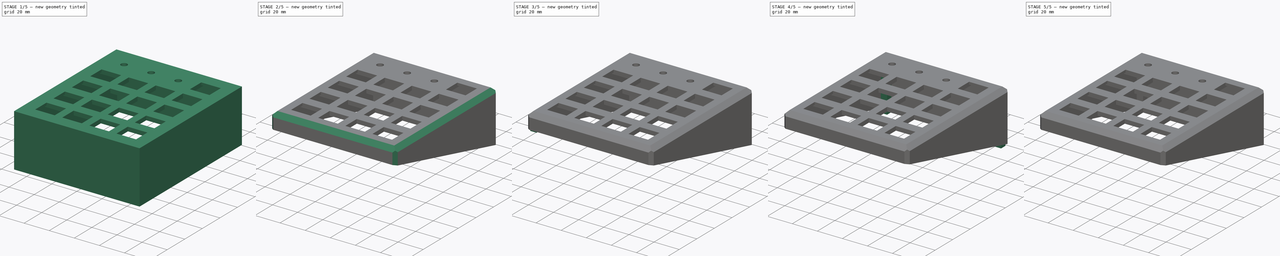
[diagram: build sequence overview — one tinted view per stage of 5, left to right]
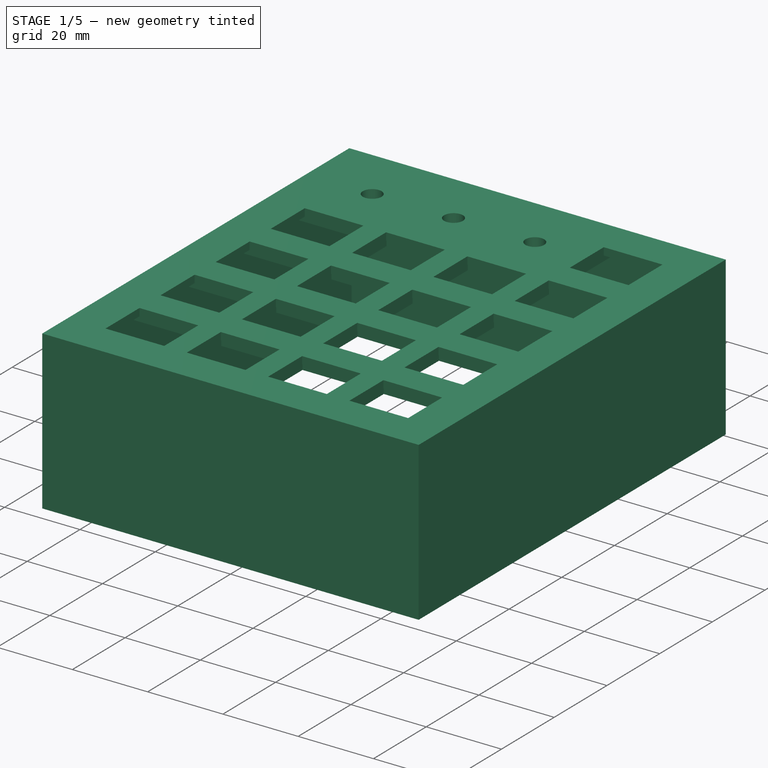
[diagram: stage 1 of 5 — iso view after this stage's code; geometry added in this stage tinted green]
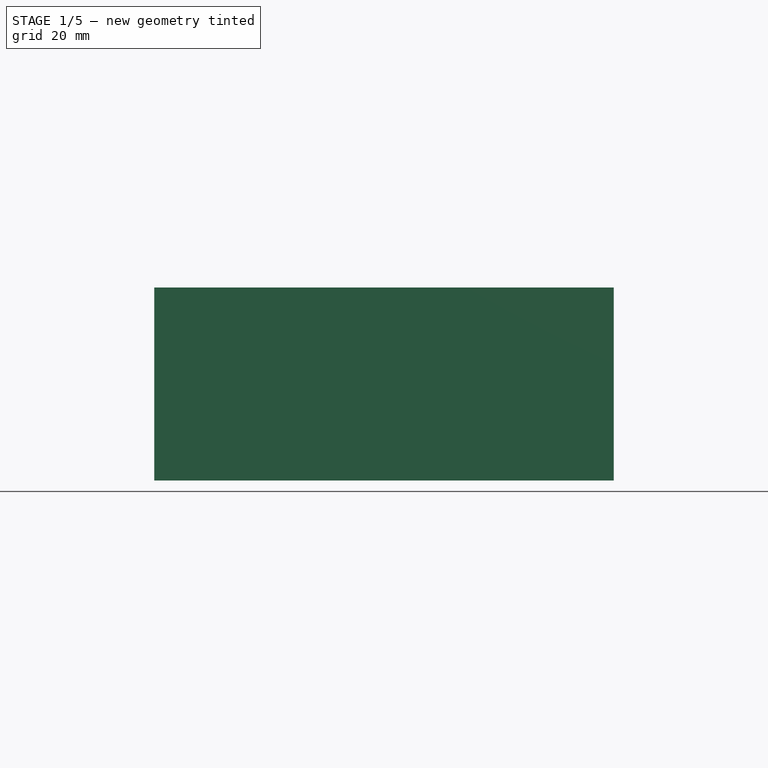
[diagram: stage 1 of 5 — front view after this stage's code; geometry added in this stage tinted green]
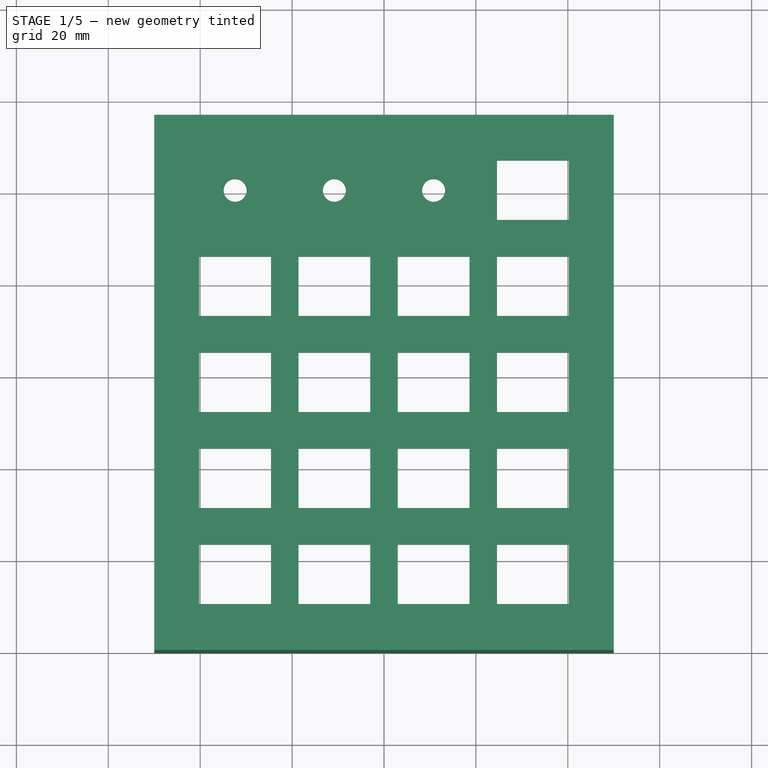
[diagram: stage 1 of 5 — top view after this stage's code; geometry added in this stage tinted green]
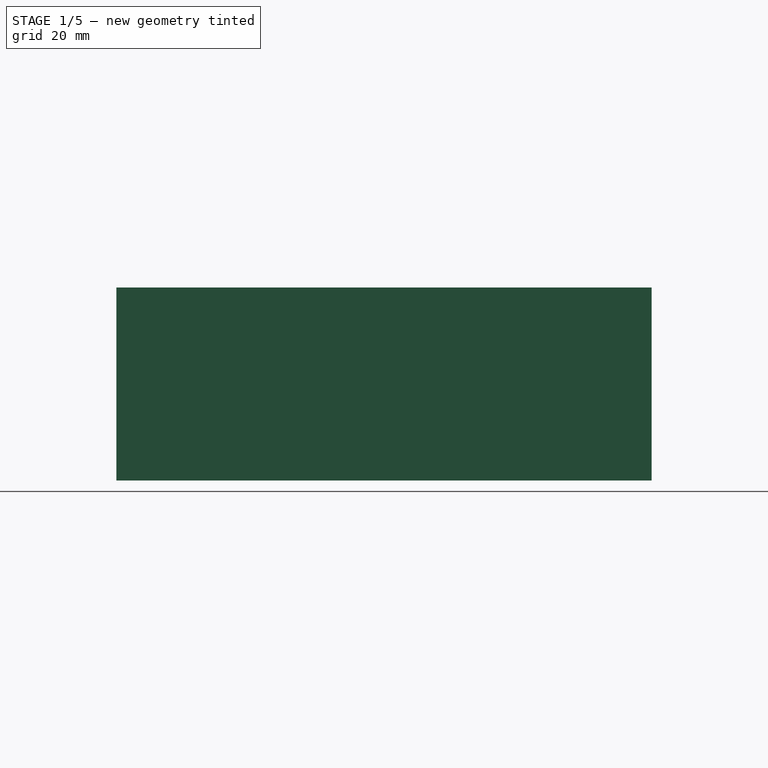
[diagram: stage 1 of 5 — right view after this stage's code; geometry added in this stage tinted green]
FCSTD DOCUMENT  (FreeCAD 0.17R13528 (Git))
Label: macro_keys-TOP
License: All rights reserved
LicenseURL: http://en.wikipedia.org/wiki/All_rights_reserved
objects: Sketcher::SketchObject×12, PartDesign::Pocket×7, PartDesign::Pad×5, PartDesign::Chamfer×3, App::MeasureDistance×2, PartDesign::Body×1
note: 40 computed .brp shape members not serialized (recipe doc carries the construction recipe); baked Part::Feature solids carry a one-line shape summary decoded from their .brp

FEATURE [Sketcher::SketchObject] Sketch
  MapMode = 5
  Support = -> [XY_Plane]
  sketch-geometry (75):
    g0: LineSegment StartX=-50 StartY=116.5 StartZ=0 EndX=50 EndY=116.5 EndZ=0
    g1: LineSegment StartX=50 StartY=116.5 StartZ=0 EndX=50 EndY=0 EndZ=0
    g2: LineSegment StartX=50 StartY=0 StartZ=0 EndX=-50 EndY=0 EndZ=0
    g3: LineSegment StartX=-50 StartY=0 StartZ=0 EndX=-50 EndY=116.5 EndZ=0
    g4: LineSegment StartX=-18.6 StartY=22.9 StartZ=0 EndX=-3 EndY=22.9 EndZ=0
    g5: LineSegment StartX=-3 StartY=22.9 StartZ=0 EndX=-3 EndY=10 EndZ=0
    g6: LineSegment StartX=-3 StartY=10 StartZ=0 EndX=-18.6 EndY=10 EndZ=0
    g7: LineSegment StartX=-18.6 StartY=10 StartZ=0 EndX=-18.6 EndY=22.9 EndZ=0
    g8: LineSegment StartX=3 StartY=10 StartZ=0 EndX=18.6 EndY=10 EndZ=0
    g9: LineSegment StartX=18.6 StartY=10 StartZ=0 EndX=18.6 EndY=22.9 EndZ=0
    g10: LineSegment StartX=18.6 StartY=22.9 StartZ=0 EndX=3 EndY=22.9 EndZ=0
    g11: LineSegment StartX=3 StartY=22.9 StartZ=0 EndX=3 EndY=10 EndZ=0
    g12: LineSegment StartX=-40.2 StartY=22.9 StartZ=0 EndX=-24.6 EndY=22.9 EndZ=0
    g13: LineSegment StartX=-24.6 StartY=22.9 StartZ=0 EndX=-24.6 EndY=10 EndZ=0
    g14: LineSegment StartX=-24.6 StartY=10 StartZ=0 EndX=-40.2 EndY=10 EndZ=0
    g15: LineSegment StartX=-40.2 StartY=10 StartZ=0 EndX=-40.2 EndY=22.9 EndZ=0
    g16: LineSegment StartX=24.6 StartY=22.9 StartZ=0 EndX=40.2 EndY=22.9 EndZ=0
    g17: LineSegment StartX=40.2 StartY=22.9 StartZ=0 EndX=40.2 EndY=10 EndZ=0
    g18: LineSegment StartX=40.2 StartY=10 StartZ=0 EndX=24.6 EndY=10 EndZ=0
    g19: LineSegment StartX=24.6 StartY=10 StartZ=0 EndX=24.6 EndY=22.9 EndZ=0
    g20: LineSegment StartX=-40.2 StartY=43.8 StartZ=0 EndX=-24.6 EndY=43.8 EndZ=0
    g21: LineSegment StartX=-24.6 StartY=43.8 StartZ=0 EndX=-24.6 EndY=30.9 EndZ=0
    g22: LineSegment StartX=-24.6 StartY=30.9 StartZ=0 EndX=-40.2 EndY=30.9 EndZ=0
    g23: LineSegment StartX=-40.2 StartY=30.9 StartZ=0 EndX=-40.2 EndY=43.8 EndZ=0
    g24: LineSegment StartX=-18.6 StartY=43.8 StartZ=0 EndX=-3 EndY=43.8 EndZ=0
    g25: LineSegment StartX=-3 StartY=43.8 StartZ=0 EndX=-3 EndY=30.9 EndZ=0
    g26: LineSegment StartX=-3 StartY=30.9 StartZ=0 EndX=-18.6 EndY=30.9 EndZ=0
    g27: LineSegment StartX=-18.6 StartY=30.9 StartZ=0 EndX=-18.6 EndY=43.8 EndZ=0
    g28: LineSegment StartX=3 StartY=43.8 StartZ=0 EndX=18.6 EndY=43.8 EndZ=0
    g29: LineSegment StartX=18.6 StartY=43.8 StartZ=0 EndX=18.6 EndY=30.9 EndZ=0
    g30: LineSegment StartX=18.6 StartY=30.9 StartZ=0 EndX=3 EndY=30.9 EndZ=0
    g31: LineSegment StartX=3 StartY=30.9 StartZ=0 EndX=3 EndY=43.8 EndZ=0
    g32: LineSegment StartX=24.6 StartY=43.8 StartZ=0 EndX=40.2 EndY=43.8 EndZ=0
    g33: LineSegment StartX=40.2 StartY=43.8 StartZ=0 EndX=40.2 EndY=30.9 EndZ=0
    g34: LineSegment StartX=40.2 StartY=30.9 StartZ=0 EndX=24.6 EndY=30.9 EndZ=0
    g35: LineSegment StartX=24.6 StartY=30.9 StartZ=0 EndX=24.6 EndY=43.8 EndZ=0
    g36: LineSegment StartX=-40.2 StartY=64.7 StartZ=0 EndX=-24.6 EndY=64.7 EndZ=0
    g37: LineSegment StartX=-24.6 StartY=64.7 StartZ=0 EndX=-24.6 EndY=51.8 EndZ=0
    g38: LineSegment StartX=-24.6 StartY=51.8 StartZ=0 EndX=-40.2 EndY=51.8 EndZ=0
    g39: LineSegment StartX=-40.2 StartY=51.8 StartZ=0 EndX=-40.2 EndY=64.7 EndZ=0
    g40: LineSegment StartX=-18.6 StartY=64.7 StartZ=0 EndX=-3 EndY=64.7 EndZ=0
    g41: LineSegment StartX=-3 StartY=64.7 StartZ=0 EndX=-3 EndY=51.8 EndZ=0
    g42: LineSegment StartX=-3 StartY=51.8 StartZ=0 EndX=-18.6 EndY=51.8 EndZ=0
    g43: LineSegment StartX=-18.6 StartY=51.8 StartZ=0 EndX=-18.6 EndY=64.7 EndZ=0
    g44: LineSegment StartX=3 StartY=64.7 StartZ=0 EndX=18.6 EndY=64.7 EndZ=0
    g45: LineSegment StartX=18.6 StartY=64.7 StartZ=0 EndX=18.6 EndY=51.8 EndZ=0
    g46: LineSegment StartX=18.6 StartY=51.8 StartZ=0 EndX=3 EndY=51.8 EndZ=0
    g47: LineSegment StartX=3 StartY=51.8 StartZ=0 EndX=3 EndY=64.7 EndZ=0
    g48: LineSegment StartX=24.6 StartY=64.7 StartZ=0 EndX=40.2 EndY=64.7 EndZ=0
    g49: LineSegment StartX=40.2 StartY=64.7 StartZ=0 EndX=40.2 EndY=51.8 EndZ=0
    g50: LineSegment StartX=40.2 StartY=51.8 StartZ=0 EndX=24.6 EndY=51.8 EndZ=0
    g51: LineSegment StartX=24.6 StartY=51.8 StartZ=0 EndX=24.6 EndY=64.7 EndZ=0
    g52: LineSegment StartX=-40.2 StartY=85.6 StartZ=0 EndX=-24.6 EndY=85.6 EndZ=0
    g53: LineSegment StartX=-24.6 StartY=85.6 StartZ=0 EndX=-24.6 EndY=72.7 EndZ=0
    g54: LineSegment StartX=-24.6 StartY=72.7 StartZ=0 EndX=-40.2 EndY=72.7 EndZ=0
    g55: LineSegment StartX=-40.2 StartY=72.7 StartZ=0 EndX=-40.2 EndY=85.6 EndZ=0
    g56: LineSegment StartX=-18.6 StartY=85.6 StartZ=0 EndX=-3 EndY=85.6 EndZ=0
    g57: LineSegment StartX=-3 StartY=85.6 StartZ=0 EndX=-3 EndY=72.7 EndZ=0
    g58: LineSegment StartX=-3 StartY=72.7 StartZ=0 EndX=-18.6 EndY=72.7 EndZ=0
    g59: LineSegment StartX=-18.6 StartY=72.7 StartZ=0 EndX=-18.6 EndY=85.6 EndZ=0
    g60: LineSegment StartX=3 StartY=85.6 StartZ=0 EndX=18.6 EndY=85.6 EndZ=0
    g61: LineSegment StartX=18.6 StartY=85.6 StartZ=0 EndX=18.6 EndY=72.7 EndZ=0
    g62: LineSegment StartX=18.6 StartY=72.7 StartZ=0 EndX=3 EndY=72.7 EndZ=0
    g63: LineSegment StartX=3 StartY=72.7 StartZ=0 EndX=3 EndY=85.6 EndZ=0
    g64: LineSegment StartX=24.6 StartY=85.6 StartZ=0 EndX=40.2 EndY=85.6 EndZ=0
    g65: LineSegment StartX=40.2 StartY=85.6 StartZ=0 EndX=40.2 EndY=72.7 EndZ=0
    g66: LineSegment StartX=40.2 StartY=72.7 StartZ=0 EndX=24.6 EndY=72.7 EndZ=0
    g67: LineSegment StartX=24.6 StartY=72.7 StartZ=0 EndX=24.6 EndY=85.6 EndZ=0
    g68: LineSegment StartX=24.6 StartY=106.5 StartZ=0 EndX=40.2 EndY=106.5 EndZ=0
    g69: LineSegment StartX=40.2 StartY=106.5 StartZ=0 EndX=40.2 EndY=93.6 EndZ=0
    g70: LineSegment StartX=40.2 StartY=93.6 StartZ=0 EndX=24.6 EndY=93.6 EndZ=0
    g71: LineSegment StartX=24.6 StartY=93.6 StartZ=0 EndX=24.6 EndY=106.5 EndZ=0
    g72: Circle CenterX=10.8 CenterY=100.05 CenterZ=0 NormalX=0 NormalY=0 NormalZ=1 AngleXU=0 Radius=2.5
    g73: Circle CenterX=-10.8 CenterY=100.05 CenterZ=0 NormalX=0 NormalY=0 NormalZ=1 AngleXU=0 Radius=2.5
    g74: Circle CenterX=-32.4 CenterY=100.05 CenterZ=0 NormalX=0 NormalY=0 NormalZ=1 AngleXU=0 Radius=2.5
  constraints (224):
    c: Coincident(g0,g1)
    c: Coincident(g1,g2)
    c: Coincident(g2,g3)
    c: Coincident(g3,g0)
    c: Horizontal(g0)
    c: Horizontal(g2)
    c: Vertical(g1)
    c: Vertical(g3)
    c: DistanceX(g0,g0) = 100
    c: Symmetric(g2,g2,g-1)
    c: Coincident(g4,g5)
    c: Coincident(g5,g6)
    c: Coincident(g6,g7)
    c: Coincident(g7,g4)
    c: Horizontal(g4)
    c: Horizontal(g6)
    c: Vertical(g5)
    c: Vertical(g7)
    c: Coincident(g8,g9)
    c: Coincident(g9,g10)
    c: Coincident(g10,g11)
    c: Coincident(g11,g8)
    c: Horizontal(g8)
    c: Horizontal(g10)
    c: Vertical(g9)
    c: Vertical(g11)
    c: DistanceY(g-1,g8) = 10
    c: DistanceY(g-1,g5) = 10
    c: DistanceX(g4,g-1) = 3
    c: DistanceX(g-1,g8) = 3
    c: Coincident(g12,g13)
    c: Coincident(g13,g14)
    c: Coincident(g14,g15)
    c: Coincident(g15,g12)
    c: Horizontal(g12)
    c: Horizontal(g14)
    c: Vertical(g13)
    c: Vertical(g15)
    c: Coincident(g16,g17)
    c: Coincident(g17,g18)
    c: Coincident(g18,g19)
    c: Coincident(g19,g16)
    c: Horizontal(g16)
    c: Horizontal(g18)
    c: Vertical(g17)
    c: Vertical(g19)
    c: DistanceX(g12,g12) = 15.6
    c: DistanceX(g12,g4) = 6
    c: DistanceX(g9,g16) = 6
    c: DistanceY(g13,g13) = 12.9
    c: DistanceY(g-1,g13) = 10
    c: DistanceY(g-1,g18) = 10
    c: Coincident(g20,g21)
    c: Coincident(g21,g22)
    c: Coincident(g22,g23)
    c: Coincident(g23,g20)
    c: Horizontal(g20)
    c: Horizontal(g22)
    c: Vertical(g21)
    c: Vertical(g23)
    c: Coincident(g24,g25)
    c: Coincident(g25,g26)
    c: Coincident(g26,g27)
    c: Coincident(g27,g24)
    c: Horizontal(g24)
    c: Horizontal(g26)
    c: Vertical(g25)
    c: Vertical(g27)
    c: Coincident(g28,g29)
    c: Coincident(g29,g30)
    c: Coincident(g30,g31)
    c: Coincident(g31,g28)
    c: Horizontal(g28)
    c: Horizontal(g30)
    c: Vertical(g29)
    c: Vertical(g31)
    c: Coincident(g32,g33)
    c: Coincident(g33,g34)
    c: Coincident(g34,g35)
    c: Coincident(g35,g32)
    c: Horizontal(g32)
    c: Horizontal(g34)
    c: Vertical(g33)
    c: Vertical(g35)
    c: Coincident(g36,g37)
    c: Coincident(g37,g38)
    c: Coincident(g38,g39)
    c: Coincident(g39,g36)
    c: Horizontal(g36)
    c: Horizontal(g38)
    c: Vertical(g37)
    c: Vertical(g39)
    c: Coincident(g40,g41)
    c: Coincident(g41,g42)
    c: Coincident(g42,g43)
    c: Coincident(g43,g40)
    c: Horizontal(g40)
    c: Horizontal(g42)
    c: Vertical(g41)
    c: Vertical(g43)
    c: Coincident(g44,g45)
    c: Coincident(g45,g46)
    c: Coincident(g46,g47)
    c: Coincident(g47,g44)
    c: Horizontal(g44)
    c: Horizontal(g46)
    c: Vertical(g45)
    c: Vertical(g47)
    c: Coincident(g48,g49)
    c: Coincident(g49,g50)
    c: Coincident(g50,g51)
    c: Coincident(g51,g48)
    c: Horizontal(g48)
    c: Horizontal(g50)
    c: Vertical(g49)
    c: Vertical(g51)
    c: Coincident(g52,g53)
    c: Coincident(g53,g54)
    c: Coincident(g54,g55)
    c: Coincident(g55,g52)
    c: Horizontal(g52)
    c: Horizontal(g54)
    c: Vertical(g53)
    c: Vertical(g55)
    c: Coincident(g56,g57)
    c: Coincident(g57,g58)
    c: Coincident(g58,g59)
    c: Coincident(g59,g56)
    c: Horizontal(g56)
    c: Horizontal(g58)
    c: Vertical(g57)
    c: Vertical(g59)
    c: Coincident(g60,g61)
    c: Coincident(g61,g62)
    c: Coincident(g62,g63)
    c: Coincident(g63,g60)
    c: Horizontal(g60)
    c: Horizontal(g62)
    c: Vertical(g61)
    c: Vertical(g63)
    c: Coincident(g64,g65)
    c: Coincident(g65,g66)
    c: Coincident(g66,g67)
    c: Coincident(g67,g64)
    c: Horizontal(g64)
    c: Horizontal(g66)
    c: Vertical(g65)
    c: Vertical(g67)
    c: Coincident(g68,g69)
    c: Coincident(g69,g70)
    c: Coincident(g70,g71)
    c: Coincident(g71,g68)
    c: Horizontal(g68)
    c: Horizontal(g70)
    c: Vertical(g69)
    c: Vertical(g71)
    c: Equal(g12,g4)
    c: Equal(g4,g10)
    c: Equal(g10,g16)
    c: Equal(g16,g32)
    c: Equal(g32,g28)
    c: Equal(g28,g24)
    c: Equal(g24,g20)
    c: Equal(g20,g36)
    c: Equal(g36,g40)
    c: Equal(g40,g44)
    c: Equal(g44,g48)
    c: Equal(g48,g64)
    c: Equal(g64,g60)
    c: Equal(g60,g56)
    c: Equal(g56,g52)
    c: Equal(g52,g68)
    c: Equal(g13,g5)
    c: Equal(g5,g9)
    c: Equal(g9,g17)
    c: Equal(g17,g33)
    c: Equal(g33,g29)
    c: Equal(g29,g25)
    c: Equal(g25,g21)
    c: Equal(g21,g37)
    c: Equal(g37,g41)
    c: Equal(g41,g45)
    c: Equal(g45,g49)
    c: Equal(g49,g65)
    c: Equal(g65,g61)
    c: Equal(g61,g57)
    c: Equal(g57,g53)
    c: Equal(g53,g69)
    c: DistanceX(g25,g-1) = 3
    c: DistanceX(g-1,g30) = 3
    c: DistanceX(g41,g-1) = 3
    c: DistanceX(g-1,g46) = 3
    c: DistanceX(g57,g-1) = 3
    c: DistanceX(g-1,g62) = 3
    c: DistanceX(g21,g26) = 6
    c: DistanceX(g29,g34) = 6
    c: DistanceX(g37,g42) = 6
    c: DistanceX(g45,g50) = 6
    c: DistanceX(g61,g66) = 6
    c: DistanceX(g53,g58) = 6
    c: DistanceY(g12,g21) = 8
    c: DistanceY(g4,g25) = 8
    c: DistanceY(g10,g30) = 8
    c: DistanceY(g16,g34) = 8
    c: DistanceY(g32,g49) = 8
    c: DistanceY(g28,g45) = 8
    c: DistanceY(g24,g41) = 8
    c: DistanceY(g20,g37) = 8
    c: DistanceY(g36,g53) = 8
    c: DistanceY(g40,g57) = 8
    c: DistanceY(g44,g61) = 8
    c: DistanceY(g48,g65) = 8
    c: DistanceY(g64,g69) = 8
    c: DistanceX(g70,g64) = 0
    c: Radius(g72) = 2.5
    c: Radius(g73) = 2.5
    c: Radius(g74) = 2.5
    c: DistanceX(g52,g74) = 7.8
    c: DistanceX(g56,g73) = 7.8
    c: DistanceX(g60,g72) = 7.8
    c: DistanceY(g72,g68) = 6.45
    c: DistanceY(g72,g73) = 0
    c: DistanceY(g74,g73) = 0
    c: DistanceY(g68,g0) = 10
FEATURE [PartDesign::Pad] Pad
  Length = 2
  Length2 = 100
  Profile = -> Sketch
  Type = 0
FEATURE [Sketcher::SketchObject] Sketch001
  ExternalGeometry = -> [Pad]
  MapMode = 5
  Placement = pos=(0,0,0) rot=(1,0,0;3.14159rad)
  Support = -> [Pad]
  sketch-geometry (8):
    g0: LineSegment StartX=-50 StartY=0 StartZ=0 EndX=50 EndY=0 EndZ=0
    g1: LineSegment StartX=50 StartY=0 StartZ=0 EndX=50 EndY=-116.5 EndZ=0
    g2: LineSegment StartX=50 StartY=-116.5 StartZ=0 EndX=-50 EndY=-116.5 EndZ=0
    g3: LineSegment StartX=-50 StartY=-116.5 StartZ=0 EndX=-50 EndY=0 EndZ=0
    g4: LineSegment StartX=-48 StartY=-2 StartZ=0 EndX=48 EndY=-2 EndZ=0
    g5: LineSegment StartX=48 StartY=-2 StartZ=0 EndX=48 EndY=-114.5 EndZ=0
    g6: LineSegment StartX=48 StartY=-114.5 StartZ=0 EndX=-48 EndY=-114.5 EndZ=0
    g7: LineSegment StartX=-48 StartY=-114.5 StartZ=0 EndX=-48 EndY=-2 EndZ=0
  constraints (21):
    c: Coincident(g0,g-6)
    c: Coincident(g0,g-4)
    c: Coincident(g1,g0)
    c: Vertical(g1)
    c: Coincident(g2,g1)
    c: Coincident(g2,g-6)
    c: Horizontal(g2)
    c: Coincident(g3,g2)
    c: Coincident(g3,g0)
    c: Coincident(g4,g5)
    c: Coincident(g5,g6)
    c: Coincident(g6,g7)
    c: Coincident(g7,g4)
    c: Horizontal(g4)
    c: Horizontal(g6)
    c: Vertical(g5)
    c: Vertical(g7)
    c: DistanceY(g4,g0) = 2
    c: DistanceY(g1,g5) = 2
    c: DistanceX(g0,g4) = 2
    c: DistanceX(g4,g0) = 2
FEATURE [PartDesign::Pad] Pad001
  BaseFeature = -> Pad
  Length = 40
  Length2 = 100
  Profile = -> Sketch001
  Type = 0
FEATURE [Sketcher::SketchObject] Sketch002
  ExternalGeometry = -> [Pad001]
  MapMode = 5
  Placement = pos=(0,0,0) rot=(1,0,0;3.14159rad)
  Support = -> [Pad001]
  sketch-geometry (82):
    g0: Circle CenterX=-32.4 CenterY=-100.05 CenterZ=0 NormalX=0 NormalY=0 NormalZ=1 AngleXU=0 Radius=5
    g1: Circle CenterX=-32.4 CenterY=-100.05 CenterZ=0 NormalX=0 NormalY=0 NormalZ=1 AngleXU=0 Radius=2.5
    g2: Circle CenterX=-10.8 CenterY=-100.05 CenterZ=0 NormalX=0 NormalY=0 NormalZ=1 AngleXU=0 Radius=5
    g3: Circle CenterX=-10.8 CenterY=-100.05 CenterZ=0 NormalX=0 NormalY=0 NormalZ=1 AngleXU=0 Radius=2.5
    g4: Circle CenterX=10.8 CenterY=-100.05 CenterZ=0 NormalX=0 NormalY=0 NormalZ=1 AngleXU=0 Radius=5
    g5: Circle CenterX=10.8 CenterY=-100.05 CenterZ=0 NormalX=0 NormalY=0 NormalZ=1 AngleXU=0 Radius=2.5
    g6: LineSegment StartX=22.6 StartY=-114.5 StartZ=0 EndX=20.6 EndY=-114.5 EndZ=0
    g7: LineSegment StartX=20.6 StartY=-114.5 StartZ=0 EndX=20.6 EndY=-90.6 EndZ=0
    g8: LineSegment StartX=20.6 StartY=-2 StartZ=0 EndX=22.6 EndY=-2 EndZ=0
    g9: LineSegment StartX=22.6 StartY=-2 StartZ=0 EndX=22.6 EndY=-25.9 EndZ=0
    g10: LineSegment StartX=1 StartY=-114.5 StartZ=0 EndX=-1 EndY=-114.5 EndZ=0
    g11: LineSegment StartX=-1 StartY=-114.5 StartZ=0 EndX=-1 EndY=-90.6 EndZ=0
    g12: LineSegment StartX=-1 StartY=-2 StartZ=0 EndX=1 EndY=-2 EndZ=0
    g13: LineSegment StartX=1 StartY=-2 StartZ=0 EndX=1 EndY=-25.9 EndZ=0
    g14: LineSegment StartX=-20.6 StartY=-114.5 StartZ=0 EndX=-22.6 EndY=-114.5 EndZ=0
    g15: LineSegment StartX=-22.6 StartY=-114.5 StartZ=0 EndX=-22.6 EndY=-90.6 EndZ=0
    g16: LineSegment StartX=-22.6 StartY=-2 StartZ=0 EndX=-20.6 EndY=-2 EndZ=0
    g17: LineSegment StartX=-20.6 StartY=-2 StartZ=0 EndX=-20.6 EndY=-25.9 EndZ=0
    g18: LineSegment StartX=-48 StartY=-90.6 StartZ=0 EndX=-22.6 EndY=-90.6 EndZ=0
    g19: LineSegment StartX=48 StartY=-90.6 StartZ=0 EndX=48 EndY=-88.6 EndZ=0
    g20: LineSegment StartX=48 StartY=-88.6 StartZ=0 EndX=22.6 EndY=-88.6 EndZ=0
    g21: LineSegment StartX=-48 StartY=-88.6 StartZ=0 EndX=-48 EndY=-90.6 EndZ=0
    g22: LineSegment StartX=-48 StartY=-69.7 StartZ=0 EndX=-22.6 EndY=-69.7 EndZ=0
    g23: LineSegment StartX=48 StartY=-69.7 StartZ=0 EndX=48 EndY=-67.7 EndZ=0
    g24: LineSegment StartX=48 StartY=-67.7 StartZ=0 EndX=22.6 EndY=-67.7 EndZ=0
    g25: LineSegment StartX=-48 StartY=-67.7 StartZ=0 EndX=-48 EndY=-69.7 EndZ=0
    g26: LineSegment StartX=-48 StartY=-48.8 StartZ=0 EndX=-22.6 EndY=-48.8 EndZ=0
    g27: LineSegment StartX=48 StartY=-48.8 StartZ=0 EndX=48 EndY=-46.8 EndZ=0
    g28: LineSegment StartX=48 StartY=-46.8 StartZ=0 EndX=22.6 EndY=-46.8 EndZ=0
    g29: LineSegment StartX=-48 StartY=-46.8 StartZ=0 EndX=-48 EndY=-48.8 EndZ=0
    g30: LineSegment StartX=-48 StartY=-27.9 StartZ=0 EndX=-22.6 EndY=-27.9 EndZ=0
    g31: LineSegment StartX=48 StartY=-27.9 StartZ=0 EndX=48 EndY=-25.9 EndZ=0
    g32: LineSegment StartX=48 StartY=-25.9 StartZ=0 EndX=22.6 EndY=-25.9 EndZ=0
    g33: LineSegment StartX=-48 StartY=-25.9 StartZ=0 EndX=-48 EndY=-27.9 EndZ=0
    g34: LineSegment StartX=22.6 StartY=-90.6 StartZ=0 EndX=48 EndY=-90.6 EndZ=0
    g35: LineSegment StartX=20.6 StartY=-88.6 StartZ=0 EndX=1 EndY=-88.6 EndZ=0
    g36: LineSegment StartX=22.6 StartY=-90.6 StartZ=0 EndX=22.6 EndY=-114.5 EndZ=0
    g37: LineSegment StartX=20.6 StartY=-88.6 StartZ=0 EndX=20.6 EndY=-69.7 EndZ=0
    g38: LineSegment StartX=1 StartY=-90.6 StartZ=0 EndX=20.6 EndY=-90.6 EndZ=0
    g39: LineSegment StartX=1 StartY=-90.6 StartZ=0 EndX=1 EndY=-114.5 EndZ=0
    g40: LineSegment StartX=-1 StartY=-88.6 StartZ=0 EndX=-20.6 EndY=-88.6 EndZ=0
    g41: LineSegment StartX=-1 StartY=-88.6 StartZ=0 EndX=-1 EndY=-69.7 EndZ=0
    g42: LineSegment StartX=-20.6 StartY=-90.6 StartZ=0 EndX=-1 EndY=-90.6 EndZ=0
    g43: LineSegment StartX=-20.6 StartY=-90.6 StartZ=0 EndX=-20.6 EndY=-114.5 EndZ=0
    g44: LineSegment StartX=-22.6 StartY=-88.6 StartZ=0 EndX=-48 EndY=-88.6 EndZ=0
    g45: LineSegment StartX=-22.6 StartY=-88.6 StartZ=0 EndX=-22.6 EndY=-69.7 EndZ=0
    g46: LineSegment StartX=22.6 StartY=-69.7 StartZ=0 EndX=48 EndY=-69.7 EndZ=0
    g47: LineSegment StartX=22.6 StartY=-69.7 StartZ=0 EndX=22.6 EndY=-88.6 EndZ=0
    g48: LineSegment StartX=20.6 StartY=-67.7 StartZ=0 EndX=1 EndY=-67.7 EndZ=0
    g49: LineSegment StartX=20.6 StartY=-67.7 StartZ=0 EndX=20.6 EndY=-48.8 EndZ=0
    g50: LineSegment StartX=1 StartY=-69.7 StartZ=0 EndX=20.6 EndY=-69.7 EndZ=0
    g51: LineSegment StartX=1 StartY=-69.7 StartZ=0 EndX=1 EndY=-88.6 EndZ=0
    g52: LineSegment StartX=-1 StartY=-67.7 StartZ=0 EndX=-20.6 EndY=-67.7 EndZ=0
    g53: LineSegment StartX=-1 StartY=-67.7 StartZ=0 EndX=-1 EndY=-48.8 EndZ=0
    g54: LineSegment StartX=-20.6 StartY=-69.7 StartZ=0 EndX=-1 EndY=-69.7 EndZ=0
    g55: LineSegment StartX=-20.6 StartY=-69.7 StartZ=0 EndX=-20.6 EndY=-88.6 EndZ=0
    g56: LineSegment StartX=-22.6 StartY=-67.7 StartZ=0 EndX=-48 EndY=-67.7 EndZ=0
    g57: LineSegment StartX=-22.6 StartY=-67.7 StartZ=0 EndX=-22.6 EndY=-48.8 EndZ=0
    g58: LineSegment StartX=22.6 StartY=-48.8 StartZ=0 EndX=48 EndY=-48.8 EndZ=0
    g59: LineSegment StartX=22.6 StartY=-48.8 StartZ=0 EndX=22.6 EndY=-67.7 EndZ=0
    g60: LineSegment StartX=20.6 StartY=-46.8 StartZ=0 EndX=1 EndY=-46.8 EndZ=0
    g61: LineSegment StartX=20.6 StartY=-46.8 StartZ=0 EndX=20.6 EndY=-27.9 EndZ=0
    g62: LineSegment StartX=1 StartY=-48.8 StartZ=0 EndX=1 EndY=-67.7 EndZ=0
    g63: LineSegment StartX=1 StartY=-48.8 StartZ=0 EndX=20.6 EndY=-48.8 EndZ=0
    g64: LineSegment StartX=-1 StartY=-46.8 StartZ=0 EndX=-20.6 EndY=-46.8 EndZ=0
    g65: LineSegment StartX=-1 StartY=-46.8 StartZ=0 EndX=-1 EndY=-27.9 EndZ=0
    g66: LineSegment StartX=-20.6 StartY=-48.8 StartZ=0 EndX=-1 EndY=-48.8 EndZ=0
    g67: LineSegment StartX=-20.6 StartY=-48.8 StartZ=0 EndX=-20.6 EndY=-67.7 EndZ=0
    g68: LineSegment StartX=-22.6 StartY=-46.8 StartZ=0 EndX=-48 EndY=-46.8 EndZ=0
    g69: LineSegment StartX=-22.6 StartY=-46.8 StartZ=0 EndX=-22.6 EndY=-27.9 EndZ=0
    g70: LineSegment StartX=22.6 StartY=-27.9 StartZ=0 EndX=22.6 EndY=-46.8 EndZ=0
    g71: LineSegment StartX=22.6 StartY=-27.9 StartZ=0 EndX=48 EndY=-27.9 EndZ=0
    g72: LineSegment StartX=20.6 StartY=-25.9 StartZ=0 EndX=20.6 EndY=-2 EndZ=0
    g73: LineSegment StartX=20.6 StartY=-25.9 StartZ=0 EndX=1 EndY=-25.9 EndZ=0
    g74: LineSegment StartX=1 StartY=-27.9 StartZ=0 EndX=1 EndY=-46.8 EndZ=0
    g75: LineSegment StartX=1 StartY=-27.9 StartZ=0 EndX=20.6 EndY=-27.9 EndZ=0
    g76: LineSegment StartX=-1 StartY=-25.9 StartZ=0 EndX=-20.6 EndY=-25.9 EndZ=0
    g77: LineSegment StartX=-20.6 StartY=-27.9 StartZ=0 EndX=-1 EndY=-27.9 EndZ=0
    g78: LineSegment StartX=-1 StartY=-25.9 StartZ=0 EndX=-1 EndY=-2 EndZ=0
    g79: LineSegment StartX=-20.6 StartY=-27.9 StartZ=0 EndX=-20.6 EndY=-46.8 EndZ=0
    g80: LineSegment StartX=-22.6 StartY=-25.9 StartZ=0 EndX=-48 EndY=-25.9 EndZ=0
    g81: LineSegment StartX=-22.6 StartY=-25.9 StartZ=0 EndX=-22.6 EndY=-2 EndZ=0
  constraints (192):
    c: Coincident(g0,g-17)
    c: Coincident(g1,g0)
    c: Coincident(g2,g-18)
    c: Coincident(g3,g2)
    c: Coincident(g4,g-19)
    c: Coincident(g5,g4)
    c: Radius(g1) = 2.5
    c: Radius(g0) = 5
    c: Radius(g3) = 2.5
    c: Radius(g2) = 5
    c: Radius(g5) = 2.5
    c: Radius(g4) = 5
    c: Coincident(g6,g7)
    c: Coincident(g72,g8)
    c: Coincident(g8,g9)
    c: Coincident(g36,g6)
    c: Horizontal(g6)
    c: Horizontal(g8)
    c: Vertical(g7)
    c: Vertical(g9)
    c: Coincident(g10,g11)
    c: Coincident(g78,g12)
    c: Coincident(g12,g13)
    c: Coincident(g39,g10)
    c: Horizontal(g10)
    c: Horizontal(g12)
    c: Vertical(g11)
    c: Vertical(g13)
    c: Coincident(g14,g15)
    c: Coincident(g81,g16)
    c: Coincident(g16,g17)
    c: Coincident(g43,g14)
    c: Horizontal(g14)
    c: Horizontal(g16)
    c: Vertical(g15)
    c: Vertical(g17)
    c: PointOnObject(g6,g-14)
    c: PointOnObject(g10,g-14)
    c: PointOnObject(g14,g-14)
    c: PointOnObject(g81,g-13)
    c: PointOnObject(g78,g-13)
    c: PointOnObject(g72,g-13)
    c: DistanceX(g81,g16) = 2
    c: DistanceX(g78,g12) = 2
    c: DistanceX(g72,g8) = 2
    c: DistanceX(g-5,g78) = 2
    c: DistanceX(g-3,g81) = 2
    c: DistanceX(g-7,g72) = 2
    c: Coincident(g34,g19)
    c: Coincident(g19,g20)
    c: Coincident(g44,g21)
    c: Coincident(g21,g18)
    c: Horizontal(g18)
    c: Horizontal(g20)
    c: Vertical(g19)
    c: Vertical(g21)
    c: Coincident(g46,g23)
    c: Coincident(g23,g24)
    c: Coincident(g56,g25)
    c: Coincident(g25,g22)
    c: Horizontal(g22)
    c: Horizontal(g24)
    c: Vertical(g23)
    c: Vertical(g25)
    c: Coincident(g58,g27)
    c: Coincident(g27,g28)
    c: Coincident(g68,g29)
    c: Coincident(g29,g26)
    c: Horizontal(g26)
    c: Horizontal(g28)
    c: Vertical(g27)
    c: Vertical(g29)
    c: Coincident(g71,g31)
    c: Coincident(g31,g32)
    c: Coincident(g80,g33)
    c: Coincident(g33,g30)
    c: Horizontal(g30)
    c: Horizontal(g32)
    c: Vertical(g31)
    c: Vertical(g33)
    c: PointOnObject(g18,g-15)
    c: PointOnObject(g22,g-15)
    c: PointOnObject(g26,g-15)
    c: PointOnObject(g30,g-15)
    c: PointOnObject(g31,g-16)
    c: PointOnObject(g27,g-16)
    c: PointOnObject(g23,g-16)
    c: PointOnObject(g19,g-16)
    c: DistanceY(g71,g31) = 2
    c: DistanceY(g58,g27) = 2
    c: DistanceY(g46,g23) = 2
    c: DistanceY(g34,g19) = 2
    c: Tangent(g18,g34)
    c: Tangent(g20,g35)
    c: Coincident(g47,g20)
    c: Coincident(g36,g34)
    c: Tangent(g9,g36)
    c: Coincident(g7,g38)
    c: Coincident(g37,g35)
    c: Tangent(g7,g37)
    c: Tangent(g18,g38)
    c: Coincident(g39,g38)
    c: Tangent(g13,g39)
    c: Coincident(g35,g51)
    c: Tangent(g35,g40)
    c: Coincident(g11,g42)
    c: Coincident(g41,g40)
    c: Tangent(g11,g41)
    c: Tangent(g18,g42)
    c: Coincident(g43,g42)
    c: Tangent(g17,g43)
    c: Coincident(g40,g55)
    c: Tangent(g40,g44)
    c: Coincident(g15,g18)
    c: Coincident(g45,g44)
    c: Tangent(g15,g45)
    c: Tangent(g22,g46)
    c: Coincident(g47,g46)
    c: Tangent(g9,g47)
    c: Coincident(g24,g59)
    c: Tangent(g24,g48)
    c: Coincident(g37,g50)
    c: Coincident(g49,g48)
    c: Tangent(g37,g49)
    c: Tangent(g22,g50)
    c: Coincident(g51,g50)
    c: Tangent(g13,g51)
    c: Coincident(g48,g62)
    c: Tangent(g48,g52)
    c: Coincident(g41,g54)
    c: Coincident(g53,g52)
    c: Tangent(g41,g53)
    c: Tangent(g22,g54)
    c: Coincident(g55,g54)
    c: Tangent(g17,g55)
    c: Coincident(g52,g67)
    c: Tangent(g52,g56)
    c: Coincident(g45,g22)
    c: Coincident(g57,g56)
    c: Tangent(g45,g57)
    c: Tangent(g26,g58)
    c: Coincident(g59,g58)
    c: Tangent(g9,g59)
    c: Coincident(g28,g70)
    c: Tangent(g28,g60)
    c: Coincident(g49,g63)
    c: Coincident(g61,g60)
    c: Tangent(g49,g61)
    c: Tangent(g13,g62)
    c: Coincident(g63,g62)
    c: Tangent(g26,g63)
    c: Coincident(g60,g74)
    c: Tangent(g60,g64)
    c: Coincident(g53,g66)
    c: Coincident(g65,g64)
    c: Tangent(g53,g65)
    c: Tangent(g26,g66)
    c: Coincident(g67,g66)
    c: Tangent(g17,g67)
    c: Coincident(g64,g79)
    c: Tangent(g64,g68)
    c: Coincident(g57,g26)
    c: Coincident(g69,g68)
    c: Tangent(g57,g69)
    c: Tangent(g9,g70)
    c: Coincident(g71,g70)
    c: Tangent(g30,g71)
    c: Coincident(g61,g75)
    c: Tangent(g61,g72)
    c: Coincident(g32,g9)
    c: Coincident(g73,g72)
    c: Tangent(g32,g73)
    c: Tangent(g13,g74)
    c: Coincident(g75,g74)
    c: Tangent(g30,g75)
    c: Coincident(g73,g13)
    c: Tangent(g73,g76)
    c: Tangent(g30,g77)
    c: Coincident(g65,g77)
    c: Coincident(g78,g76)
    c: Tangent(g65,g78)
    c: Coincident(g79,g77)
    c: Tangent(g17,g79)
    c: Coincident(g76,g17)
    c: Tangent(g76,g80)
    c: Coincident(g69,g30)
    c: Coincident(g81,g80)
    c: Tangent(g69,g81)
    c: DistanceY(g40,g-12) = 3
    c: DistanceY(g52,g-11) = 3
    c: DistanceY(g64,g-10) = 3
    c: DistanceY(g76,g-9) = 3
FEATURE [PartDesign::Pad] Pad002
  BaseFeature = -> Pad001
  Length = 3
  Length2 = 100
  Profile = -> Sketch002
  Type = 0
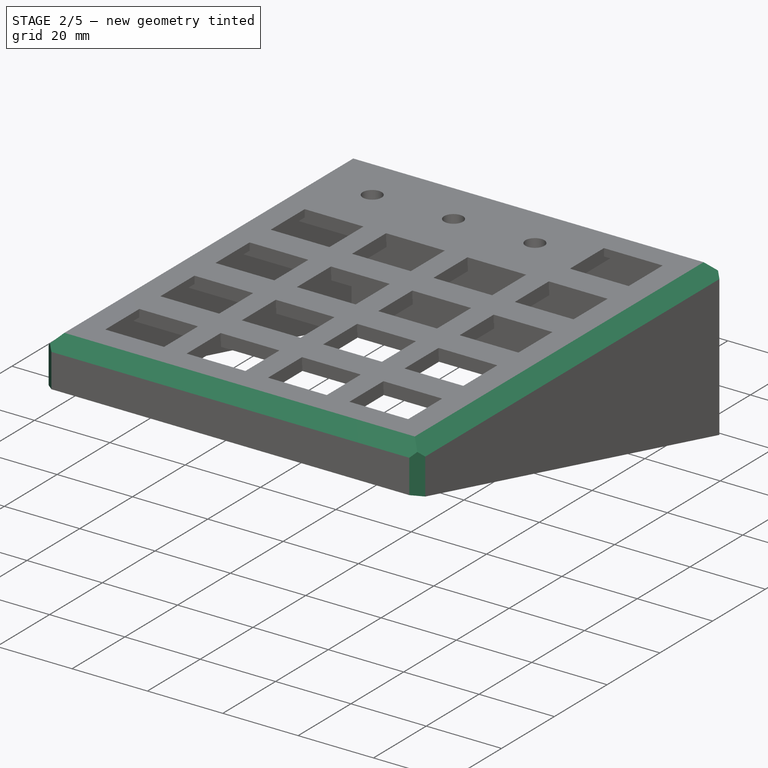
[diagram: stage 2 of 5 — iso view after this stage's code; geometry added in this stage tinted green]
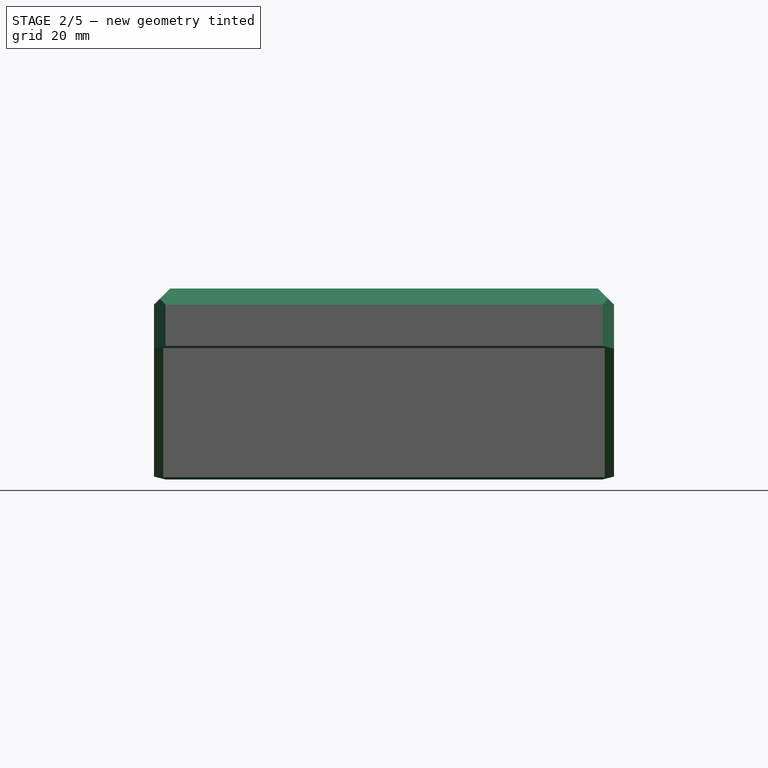
[diagram: stage 2 of 5 — front view after this stage's code; geometry added in this stage tinted green]
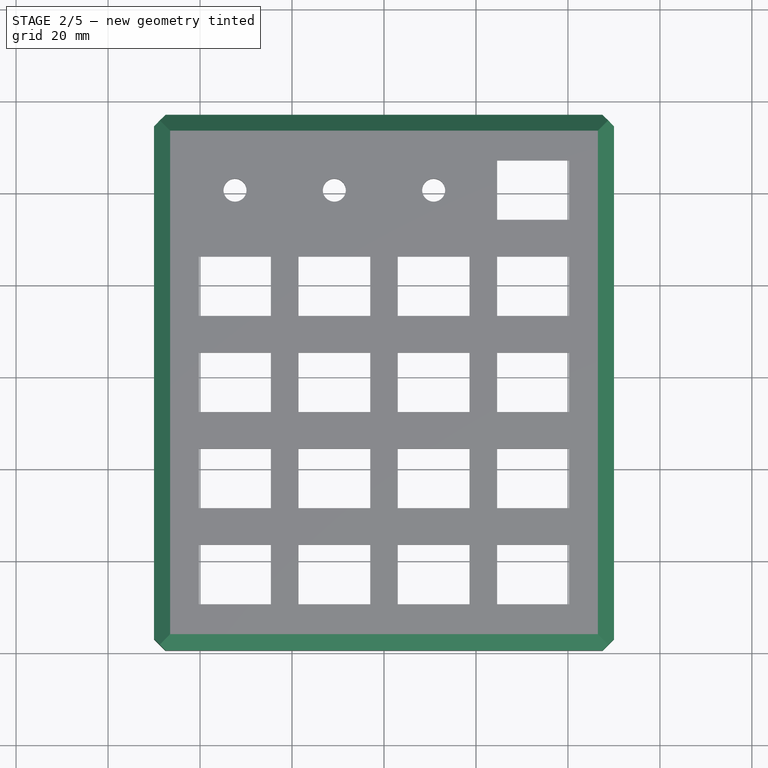
[diagram: stage 2 of 5 — top view after this stage's code; geometry added in this stage tinted green]
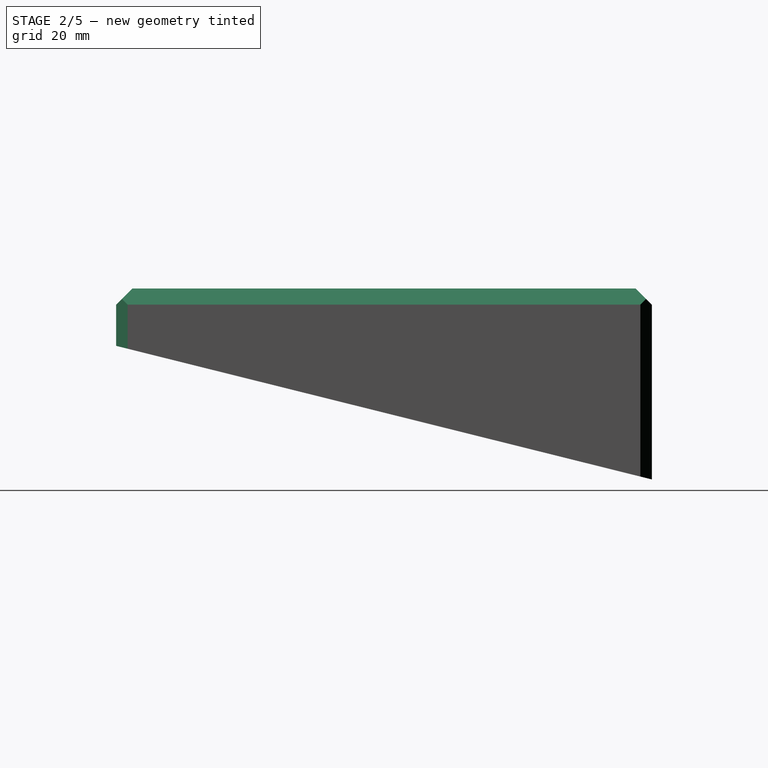
[diagram: stage 2 of 5 — right view after this stage's code; geometry added in this stage tinted green]
FEATURE [Sketcher::SketchObject] Sketch003
  ExternalGeometry = -> [Pad002]
  MapMode = 5
  Placement = pos=(50,0,0) rot=(0.57735,0.57735,0.57735;2.0944rad)
  Support = -> [Pad002]
  sketch-geometry (3):
    g0: LineSegment StartX=-1 StartY=-10.2107 StartZ=0 EndX=126.5 EndY=-42 EndZ=0
    g1: LineSegment StartX=-1 StartY=-10.2107 StartZ=0 EndX=-1 EndY=-42 EndZ=0
    g2: LineSegment StartX=-1 StartY=-42 StartZ=0 EndX=126.5 EndY=-42 EndZ=0
  constraints (9):
    c: Coincident(g1,g0)
    c: Vertical(g1)
    c: Coincident(g2,g1)
    c: DistanceX(g0,g-1) = 1
    c: Horizontal(g2)
    c: DistanceX(g-4,g0) = 10
    c: DistanceY(g0,g-4) = 2
    c: Coincident(g2,g0)
    c: Angle(g0,g2) = 0.244346
FEATURE [PartDesign::Pocket] Pocket
  BaseFeature = -> Pad002
  Length = 5
  Length2 = 100
  Profile = -> Sketch003
  Type = 1
FEATURE [PartDesign::Chamfer] Chamfer
  Base = -> Pocket [Edge4,Edge3,Edge2,Edge1]
  BaseFeature = -> Pocket
  Size = 3.5
FEATURE [PartDesign::Chamfer] Chamfer001
  Base = -> Chamfer [Edge229,Edge226,Edge228,Edge232]
  BaseFeature = -> Chamfer
  Size = 2.5
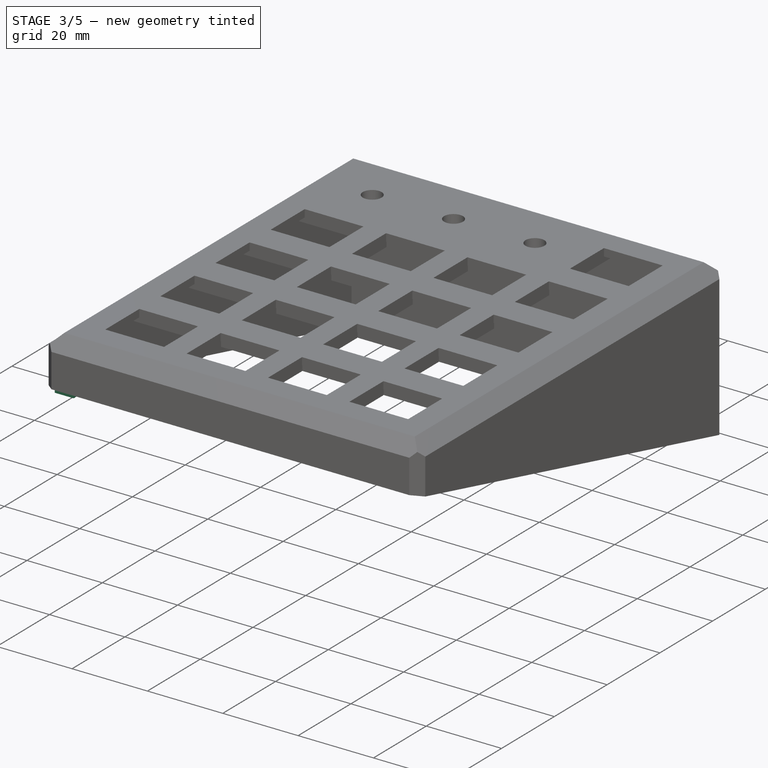
[diagram: stage 3 of 5 — iso view after this stage's code; geometry added in this stage tinted green]
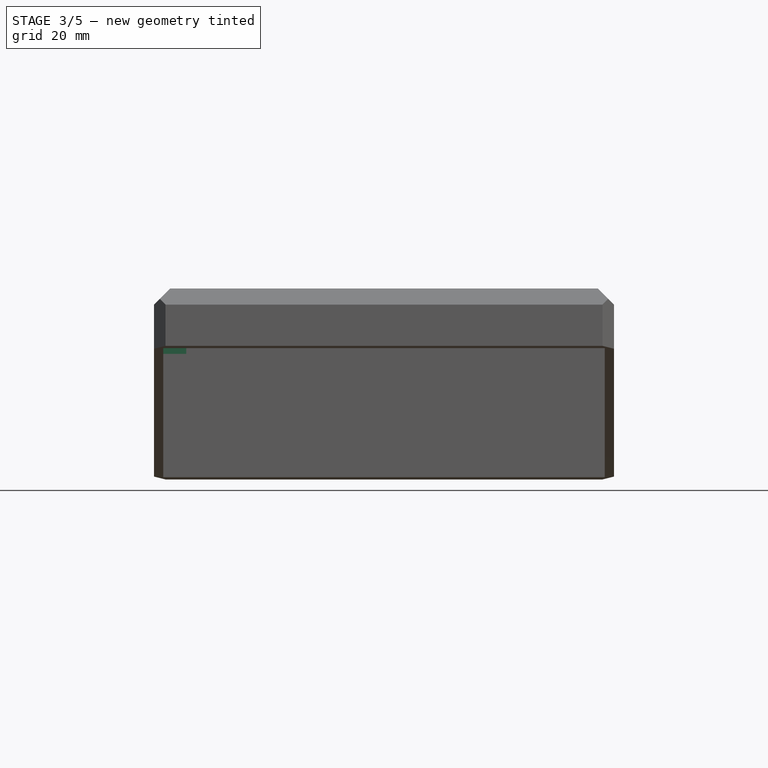
[diagram: stage 3 of 5 — front view after this stage's code; geometry added in this stage tinted green]
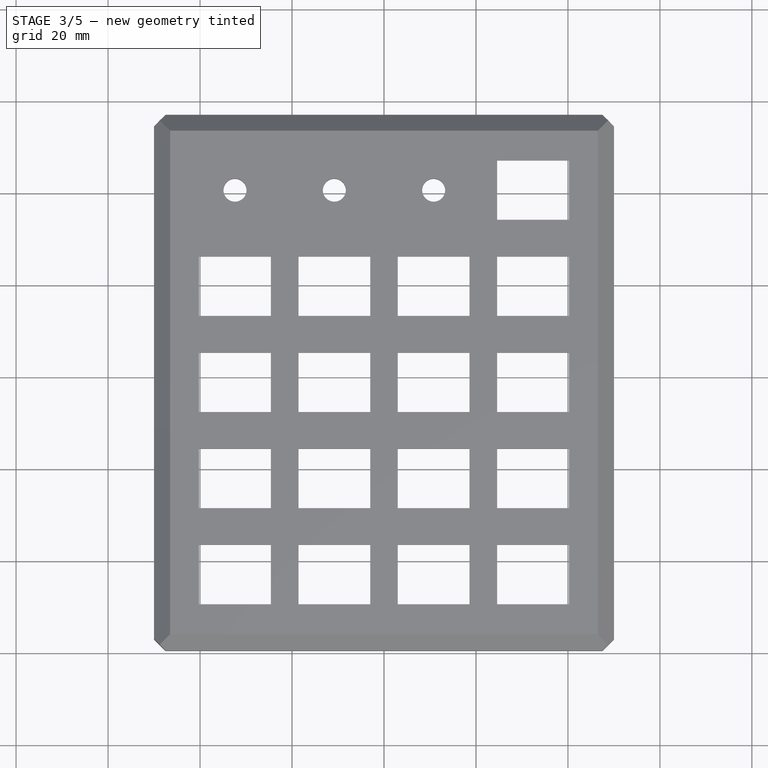
[diagram: stage 3 of 5 — top view after this stage's code; geometry added in this stage tinted green]
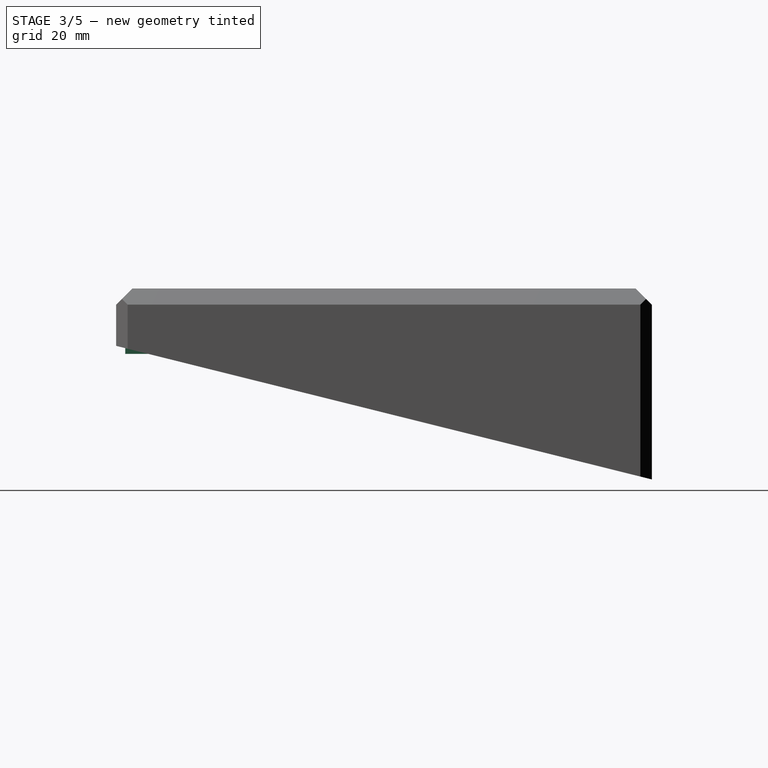
[diagram: stage 3 of 5 — right view after this stage's code; geometry added in this stage tinted green]
FEATURE [Sketcher::SketchObject] Sketch004
  ExternalGeometry = -> [Chamfer001]
  MapMode = 5
  Placement = pos=(0,0,0) rot=(1,0,0;3.14159rad)
  Support = -> [Chamfer001]
  sketch-geometry (8):
    g0: LineSegment StartX=48 StartY=-2 StartZ=0 EndX=43 EndY=-2 EndZ=0
    g1: LineSegment StartX=43 StartY=-2 StartZ=0 EndX=43 EndY=-7 EndZ=0
    g2: LineSegment StartX=43 StartY=-7 StartZ=0 EndX=48 EndY=-7 EndZ=0
    g3: LineSegment StartX=48 StartY=-7 StartZ=0 EndX=48 EndY=-2 EndZ=0
    g4: LineSegment StartX=-48 StartY=-2 StartZ=0 EndX=-43 EndY=-2 EndZ=0
    g5: LineSegment StartX=-43 StartY=-2 StartZ=0 EndX=-43 EndY=-7 EndZ=0
    g6: LineSegment StartX=-43 StartY=-7 StartZ=0 EndX=-48 EndY=-7 EndZ=0
    g7: LineSegment StartX=-48 StartY=-7 StartZ=0 EndX=-48 EndY=-2 EndZ=0
  constraints (22):
    c: Coincident(g0,g1)
    c: Coincident(g1,g2)
    c: Coincident(g2,g3)
    c: Coincident(g3,g0)
    c: Horizontal(g0)
    c: Horizontal(g2)
    c: Vertical(g1)
    c: Vertical(g3)
    c: Coincident(g0,g-4)
    c: DistanceX(g2,g2) = 5
    c: DistanceY(g1,g1) = 5
    c: Coincident(g4,g5)
    c: Coincident(g5,g6)
    c: Coincident(g6,g7)
    c: Coincident(g7,g4)
    c: Horizontal(g4)
    c: Horizontal(g6)
    c: Vertical(g5)
    c: Vertical(g7)
    c: Coincident(g-7,g4)
    c: DistanceX(g6,g6) = 5
    c: DistanceY(g5,g5) = 5
FEATURE [PartDesign::Pad] Pad003
  BaseFeature = -> Chamfer001
  Length = 12.2
  Length2 = 100
  Profile = -> Sketch004
  Type = 0
FEATURE [Sketcher::SketchObject] Sketch005
  ExternalGeometry = -> [Pad003]
  MapMode = 5
  Placement = pos=(43,0,0) rot=(0.57735,-0.57735,-0.57735;2.0944rad)
  Support = -> [Pad003]
  sketch-geometry (4):
    g0: LineSegment StartX=-7 StartY=-10.2 StartZ=0 EndX=-2 EndY=-8.95866 EndZ=0
    g1: LineSegment StartX=-2 StartY=-8.95866 StartZ=0 EndX=-2 EndY=-13.7911 EndZ=0
    g2: LineSegment StartX=-2 StartY=-13.7911 StartZ=0 EndX=-7 EndY=-13.7911 EndZ=0
    g3: LineSegment StartX=-7 StartY=-13.7911 StartZ=0 EndX=-7 EndY=-10.2 EndZ=0
  constraints (11):
    c: DistanceY(g-6,g0) = 2
    c: DistanceY(g-4,g0) = 2
    c: DistanceX(g-4,g0) = 0
    c: DistanceX(g0,g-6) = 0
    c: Coincident(g1,g0)
    c: Vertical(g1)
    c: Coincident(g2,g1)
    c: Horizontal(g2)
    c: Coincident(g3,g2)
    c: Coincident(g3,g0)
    c: Vertical(g3)
FEATURE [Sketcher::SketchObject] Sketch006
  ExternalGeometry = -> [Pad003]
  MapMode = 5
  Placement = pos=(0,0,-12.2) rot=(1,0,0;3.14159rad)
  Support = -> [Pad003]
  sketch-geometry (2):
    g0: Circle CenterX=-45.5 CenterY=-4.5 CenterZ=0 NormalX=0 NormalY=0 NormalZ=1 AngleXU=0 Radius=0.8
    g1: Circle CenterX=45.5 CenterY=-4.5 CenterZ=0 NormalX=0 NormalY=0 NormalZ=1 AngleXU=0 Radius=0.8
  constraints (6):
    c: Radius(g1) = 0.8
    c: Radius(g0) = 0.8
    c: DistanceX(g0,g-6) = 2.5
    c: DistanceY(g-6,g0) = 2.5
    c: DistanceX(g-4,g1) = 2.5
    c: DistanceY(g-4,g1) = 2.5
FEATURE [PartDesign::Pocket] Pocket001
  BaseFeature = -> Pad003
  Length = 12
  Length2 = 100
  Profile = -> Sketch006
  Type = 0
FEATURE [PartDesign::Pocket] Pocket002
  BaseFeature = -> Pocket001
  Length = 5
  Length2 = 100
  Profile = -> Sketch005
  Type = 0
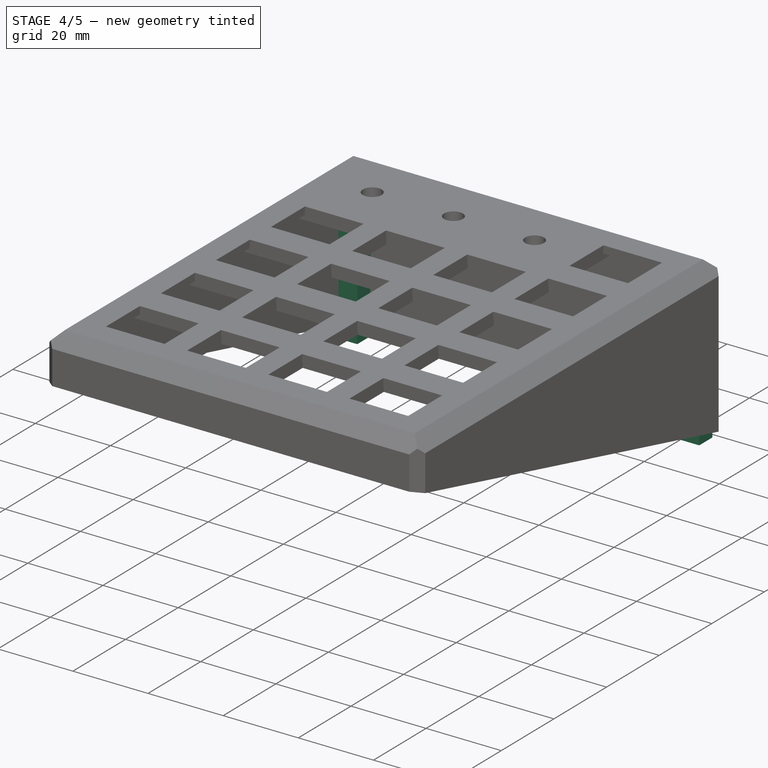
[diagram: stage 4 of 5 — iso view after this stage's code; geometry added in this stage tinted green]
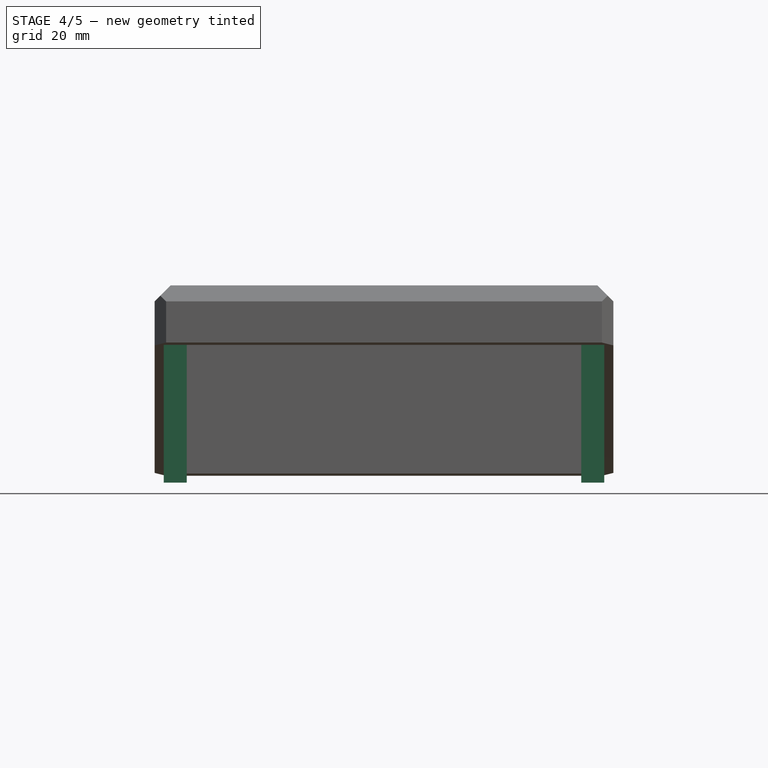
[diagram: stage 4 of 5 — front view after this stage's code; geometry added in this stage tinted green]
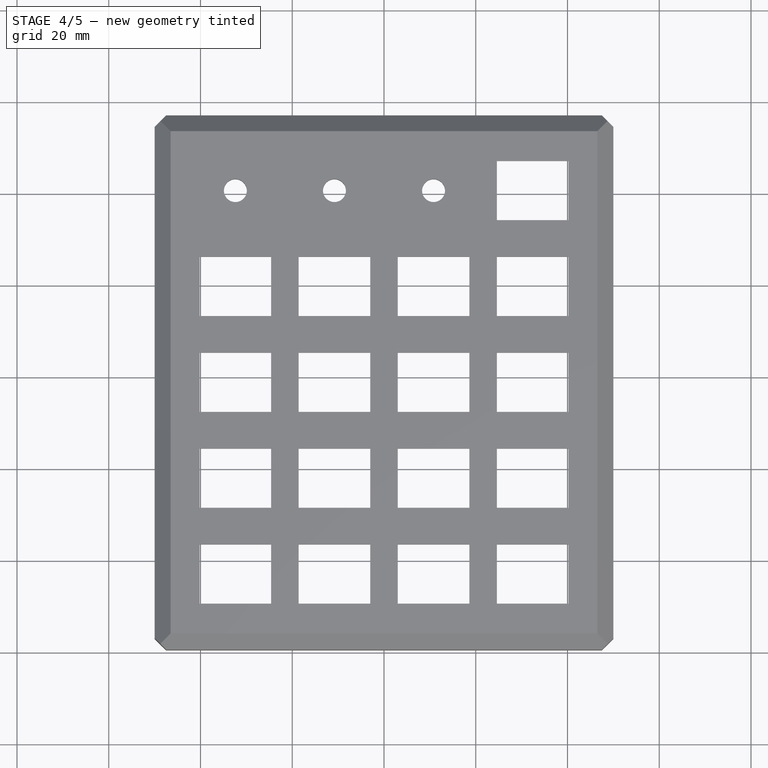
[diagram: stage 4 of 5 — top view after this stage's code; geometry added in this stage tinted green]
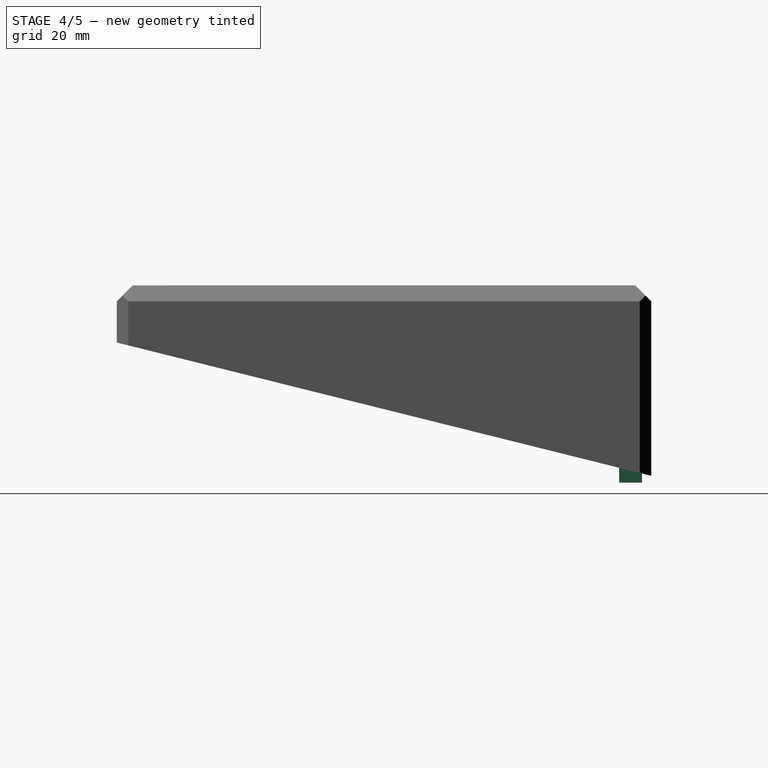
[diagram: stage 4 of 5 — right view after this stage's code; geometry added in this stage tinted green]
FEATURE [Sketcher::SketchObject] Sketch007
  ExternalGeometry = -> [Pocket002]
  MapMode = 5
  Placement = pos=(-43,0,0) rot=(0.57735,0.57735,0.57735;2.0944rad)
  Support = -> [Pocket002]
  sketch-geometry (4):
    g0: LineSegment StartX=7 StartY=-10.2 StartZ=0 EndX=2 EndY=-8.95866 EndZ=0
    g1: LineSegment StartX=7 StartY=-10.2 StartZ=0 EndX=7 EndY=-15.5921 EndZ=0
    g2: LineSegment StartX=7 StartY=-15.5921 StartZ=0 EndX=2 EndY=-15.5921 EndZ=0
    g3: LineSegment StartX=2 StartY=-15.5921 StartZ=0 EndX=2 EndY=-8.95866 EndZ=0
  constraints (11):
    c: DistanceY(g-6,g0) = 2
    c: DistanceY(g-4,g0) = 2
    c: DistanceX(g-4,g0) = 0
    c: DistanceX(g0,g-6) = 0
    c: Coincident(g1,g0)
    c: Vertical(g1)
    c: Coincident(g2,g1)
    c: Horizontal(g2)
    c: Coincident(g3,g2)
    c: Coincident(g3,g0)
    c: Vertical(g3)
FEATURE [PartDesign::Pocket] Pocket003
  BaseFeature = -> Pocket002
  Length = 5
  Length2 = 100
  Profile = -> Sketch007
  Type = 0
FEATURE [Sketcher::SketchObject] Sketch008
  ExternalGeometry = -> [Pocket003]
  MapMode = 5
  Placement = pos=(0,0,0) rot=(1,0,0;3.14159rad)
  Support = -> [Pocket003]
  sketch-geometry (8):
    g0: LineSegment StartX=-48 StartY=-114.5 StartZ=0 EndX=-43 EndY=-114.5 EndZ=0
    g1: LineSegment StartX=-43 StartY=-114.5 StartZ=0 EndX=-43 EndY=-109.5 EndZ=0
    g2: LineSegment StartX=-43 StartY=-109.5 StartZ=0 EndX=-48 EndY=-109.5 EndZ=0
    g3: LineSegment StartX=-48 StartY=-109.5 StartZ=0 EndX=-48 EndY=-114.5 EndZ=0
    g4: LineSegment StartX=48 StartY=-114.5 StartZ=0 EndX=43 EndY=-114.5 EndZ=0
    g5: LineSegment StartX=43 StartY=-114.5 StartZ=0 EndX=43 EndY=-109.5 EndZ=0
    g6: LineSegment StartX=43 StartY=-109.5 StartZ=0 EndX=48 EndY=-109.5 EndZ=0
    g7: LineSegment StartX=48 StartY=-109.5 StartZ=0 EndX=48 EndY=-114.5 EndZ=0
  constraints (22):
    c: Coincident(g0,g1)
    c: Coincident(g1,g2)
    c: Coincident(g2,g3)
    c: Coincident(g3,g0)
    c: Horizontal(g0)
    c: Horizontal(g2)
    c: Vertical(g1)
    c: Vertical(g3)
    c: Coincident(g4,g5)
    c: Coincident(g5,g6)
    c: Coincident(g6,g7)
    c: Coincident(g7,g4)
    c: Horizontal(g4)
    c: Horizontal(g6)
    c: Vertical(g5)
    c: Vertical(g7)
    c: Coincident(g-4,g0)
    c: Coincident(g-3,g4)
    c: DistanceX(g6,g6) = 5
    c: DistanceX(g2,g2) = 5
    c: DistanceY(g1,g1) = 5
    c: DistanceY(g5,g5) = 5
FEATURE [PartDesign::Pad] Pad004
  BaseFeature = -> Pocket003
  Length = 41
  Length2 = 100
  Profile = -> Sketch008
  Type = 0
FEATURE [Sketcher::SketchObject] Sketch009
  ExternalGeometry = -> [Pad004]
  MapMode = 5
  Placement = pos=(-43,0,0) rot=(0.57735,0.57735,0.57735;2.0944rad)
  Support = -> [Pad004]
  sketch-geometry (4):
    g0: LineSegment StartX=114.5 StartY=-37.0081 StartZ=0 EndX=109.5 EndY=-35.7614 EndZ=0
    g1: LineSegment StartX=114.5 StartY=-37.0081 StartZ=0 EndX=114.5 EndY=-43.0991 EndZ=0
    g2: LineSegment StartX=114.5 StartY=-43.0991 StartZ=0 EndX=109.5 EndY=-43.0991 EndZ=0
    g3: LineSegment StartX=109.5 StartY=-43.0991 StartZ=0 EndX=109.5 EndY=-35.7614 EndZ=0
  constraints (11):
    c: Coincident(g1,g0)
    c: Coincident(g2,g1)
    c: Horizontal(g2)
    c: Coincident(g3,g2)
    c: Coincident(g3,g0)
    c: DistanceY(g-4,g0) = 2
    c: DistanceX(g0,g-4) = 0
    c: DistanceX(g-6,g0) = 0
    c: Vertical(g1)
    c: Angle(g0,g-5) = 0.244346
    c: Vertical(g3)
FEATURE [Sketcher::SketchObject] Sketch010
  ExternalGeometry = -> [Pad004]
  MapMode = 5
  Placement = pos=(0,0,-41) rot=(1,0,0;3.14159rad)
  Support = -> [Pad004]
  sketch-geometry (2):
    g0: Circle CenterX=-45.5 CenterY=-112 CenterZ=0 NormalX=0 NormalY=0 NormalZ=1 AngleXU=0 Radius=0.8
    g1: Circle CenterX=45.5 CenterY=-112 CenterZ=0 NormalX=0 NormalY=0 NormalZ=1 AngleXU=0 Radius=0.8
  constraints (6):
    c: Radius(g1) = 0.8
    c: Radius(g0) = 0.8
    c: DistanceX(g0,g-4) = 2.5
    c: DistanceX(g-6,g1) = 2.5
    c: DistanceY(g1,g-6) = 2.5
    c: DistanceY(g0,g-4) = 2.5
FEATURE [PartDesign::Pocket] Pocket004
  BaseFeature = -> Pad004
  Length = 15
  Length2 = 100
  Profile = -> Sketch010
  Type = 0
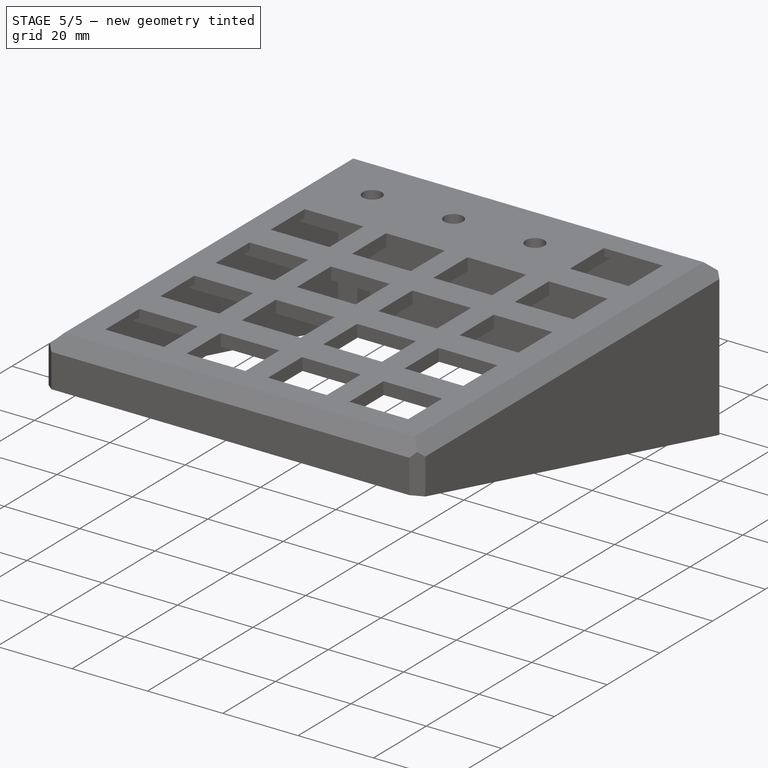
[diagram: stage 5 of 5 — iso view after this stage's code; geometry added in this stage tinted green]
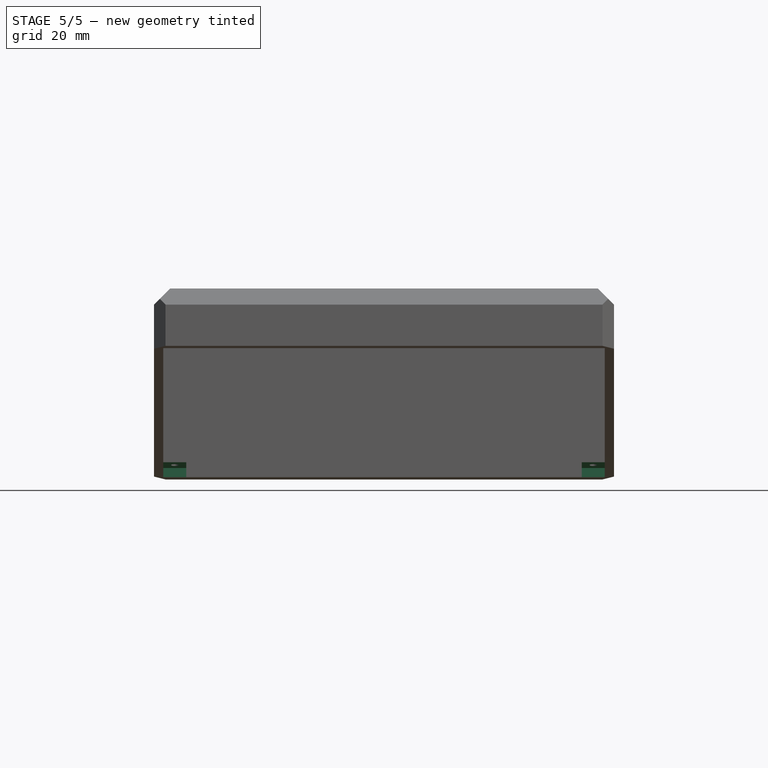
[diagram: stage 5 of 5 — front view after this stage's code; geometry added in this stage tinted green]
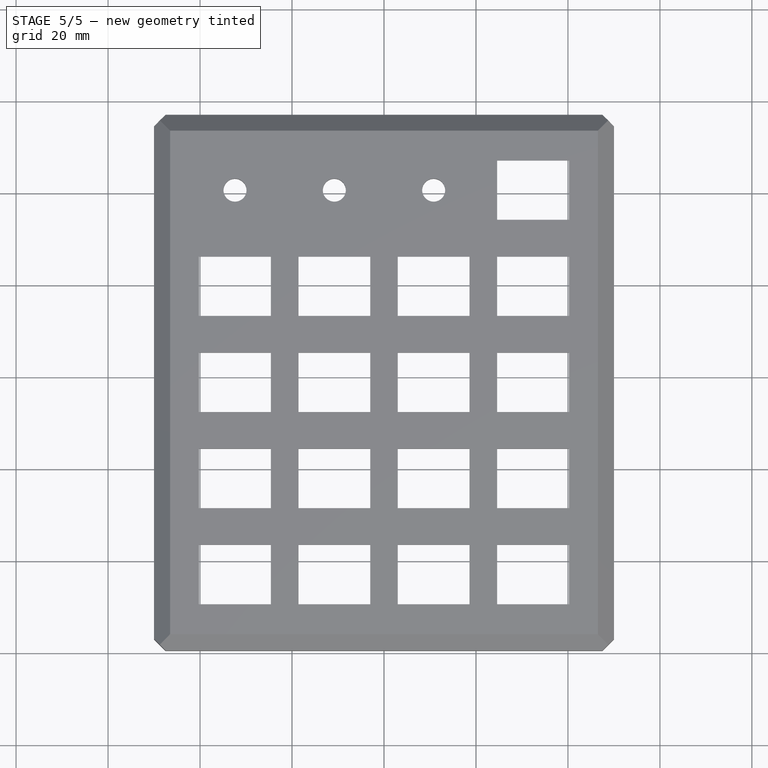
[diagram: stage 5 of 5 — top view after this stage's code; geometry added in this stage tinted green]
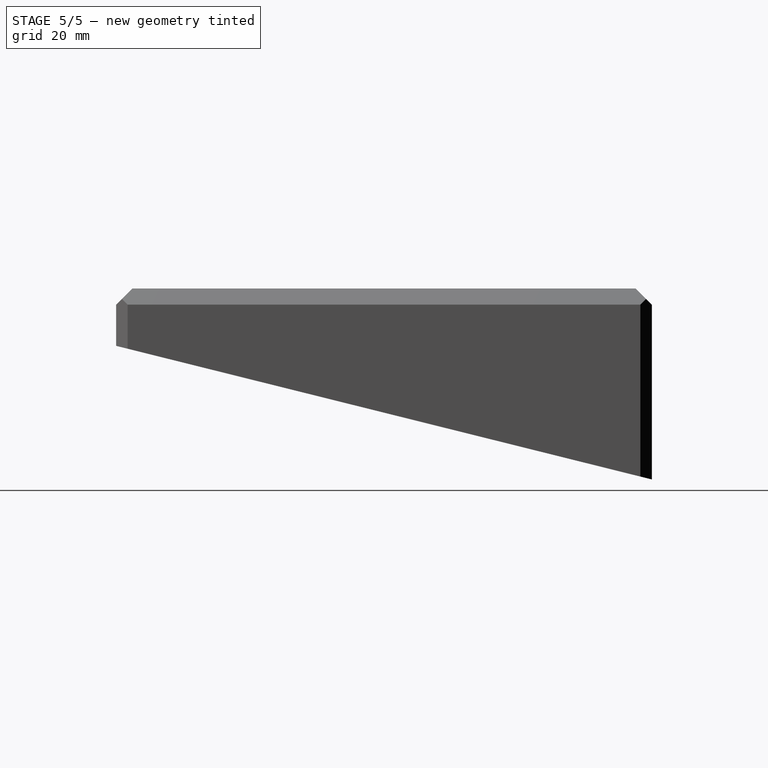
[diagram: stage 5 of 5 — right view after this stage's code; geometry added in this stage tinted green]
FEATURE [PartDesign::Pocket] Pocket005
  BaseFeature = -> Pocket004
  Length = 5
  Length2 = 100
  Profile = -> Sketch009
  Type = 0
FEATURE [Sketcher::SketchObject] Sketch011
  ExternalGeometry = -> [Pocket005]
  MapMode = 5
  Placement = pos=(43,0,0) rot=(0.57735,-0.57735,-0.57735;2.0944rad)
  Support = -> [Pocket005]
  sketch-geometry (4):
    g0: LineSegment StartX=-114.5 StartY=-37.0081 StartZ=0 EndX=-109.5 EndY=-35.7614 EndZ=0
    g1: LineSegment StartX=-109.5 StartY=-35.7614 StartZ=0 EndX=-109.5 EndY=-43.19 EndZ=0
    g2: LineSegment StartX=-109.5 StartY=-43.19 StartZ=0 EndX=-114.5 EndY=-43.19 EndZ=0
    g3: LineSegment StartX=-114.5 StartY=-43.19 StartZ=0 EndX=-114.5 EndY=-37.0081 EndZ=0
  constraints (11):
    c: Coincident(g1,g0)
    c: Coincident(g2,g1)
    c: Coincident(g3,g2)
    c: Coincident(g3,g0)
    c: Vertical(g3)
    c: Vertical(g1)
    c: Horizontal(g2)
    c: DistanceY(g-4,g0) = 2
    c: DistanceX(g-4,g0) = 0
    c: DistanceX(g0,g-6) = 0
    c: Angle(g-5,g0) = 0.244346
FEATURE [PartDesign::Pocket] Pocket006
  BaseFeature = -> Pocket005
  Length = 5
  Length2 = 100
  Profile = -> Sketch011
  Type = 0
FEATURE [PartDesign::Chamfer] Chamfer002
  Base = -> Pocket006 [Edge317,Edge322,Edge330,Edge335,Edge327,Edge337,Edge343,Edge351,Edge346,Edge289,Edge295,Edge302,Edge307,Edge299,Edge270,Edge276,Edge284,Edge279]
  BaseFeature = -> Pocket006
  Size = 2
FEATURE [PartDesign::Body] Body  label="box-top"
  Group = -> [Sketch,Pad,Sketch001,Pad001,Sketch002,Pad002,Sketch003,Pocket,Chamfer,Chamfer001,Sketch004,Pad003,Sketch005,Sketch006,Pocket001,Pocket002,Sketch007,Pocket003,Sketch008,Pad004,Sketch009,Sketch010,Pocket004,Pocket005,Sketch011,Pocket006,Chamfer002]
  Origin = -> Origin
  Tip = -> Chamfer002
FEATURE [App::MeasureDistance] Distance  label="Distance: 115,94 mm"
  Distance = 115.944
  P1 = (47.9556,2,-10.9587)
  P2 = (47.954,114.5,-39.0081)
FEATURE [App::MeasureDistance] Distance001  label="Distance: 96,00 mm"
  Distance = 96
  P1 = (-48,2.05899,-10.9734)
  P2 = (48,2.05278,-10.9718)
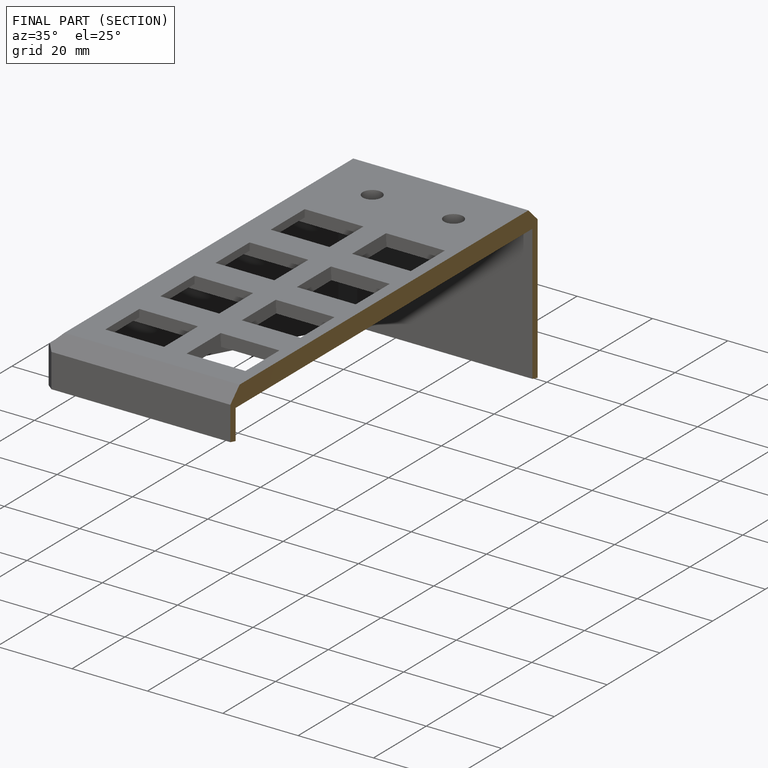
[diagram: finished part — half-section view (interior)]
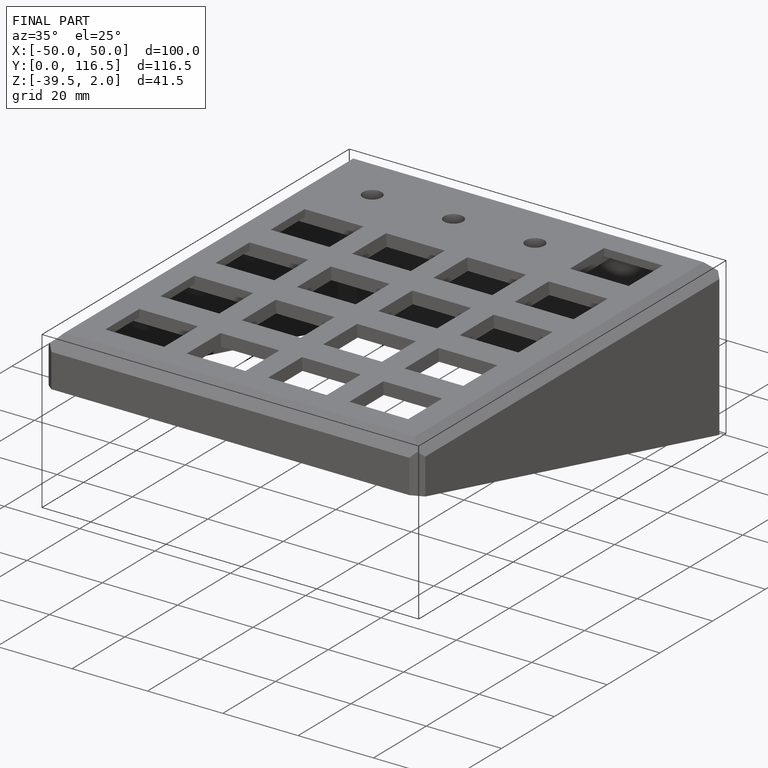
[diagram: finished part — iso view with bounding-box wireframe]
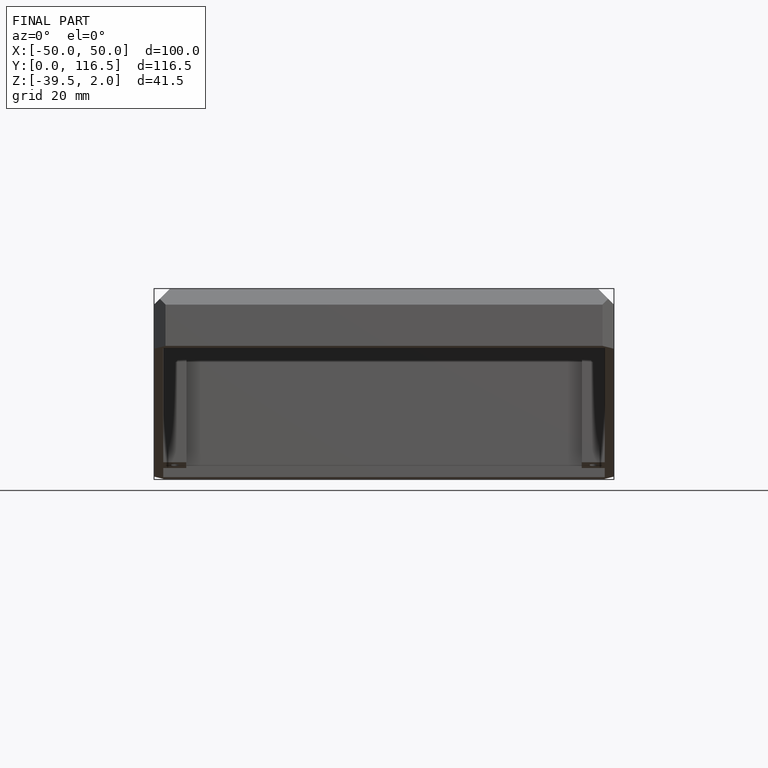
[diagram: finished part — front view with bounding-box wireframe]
